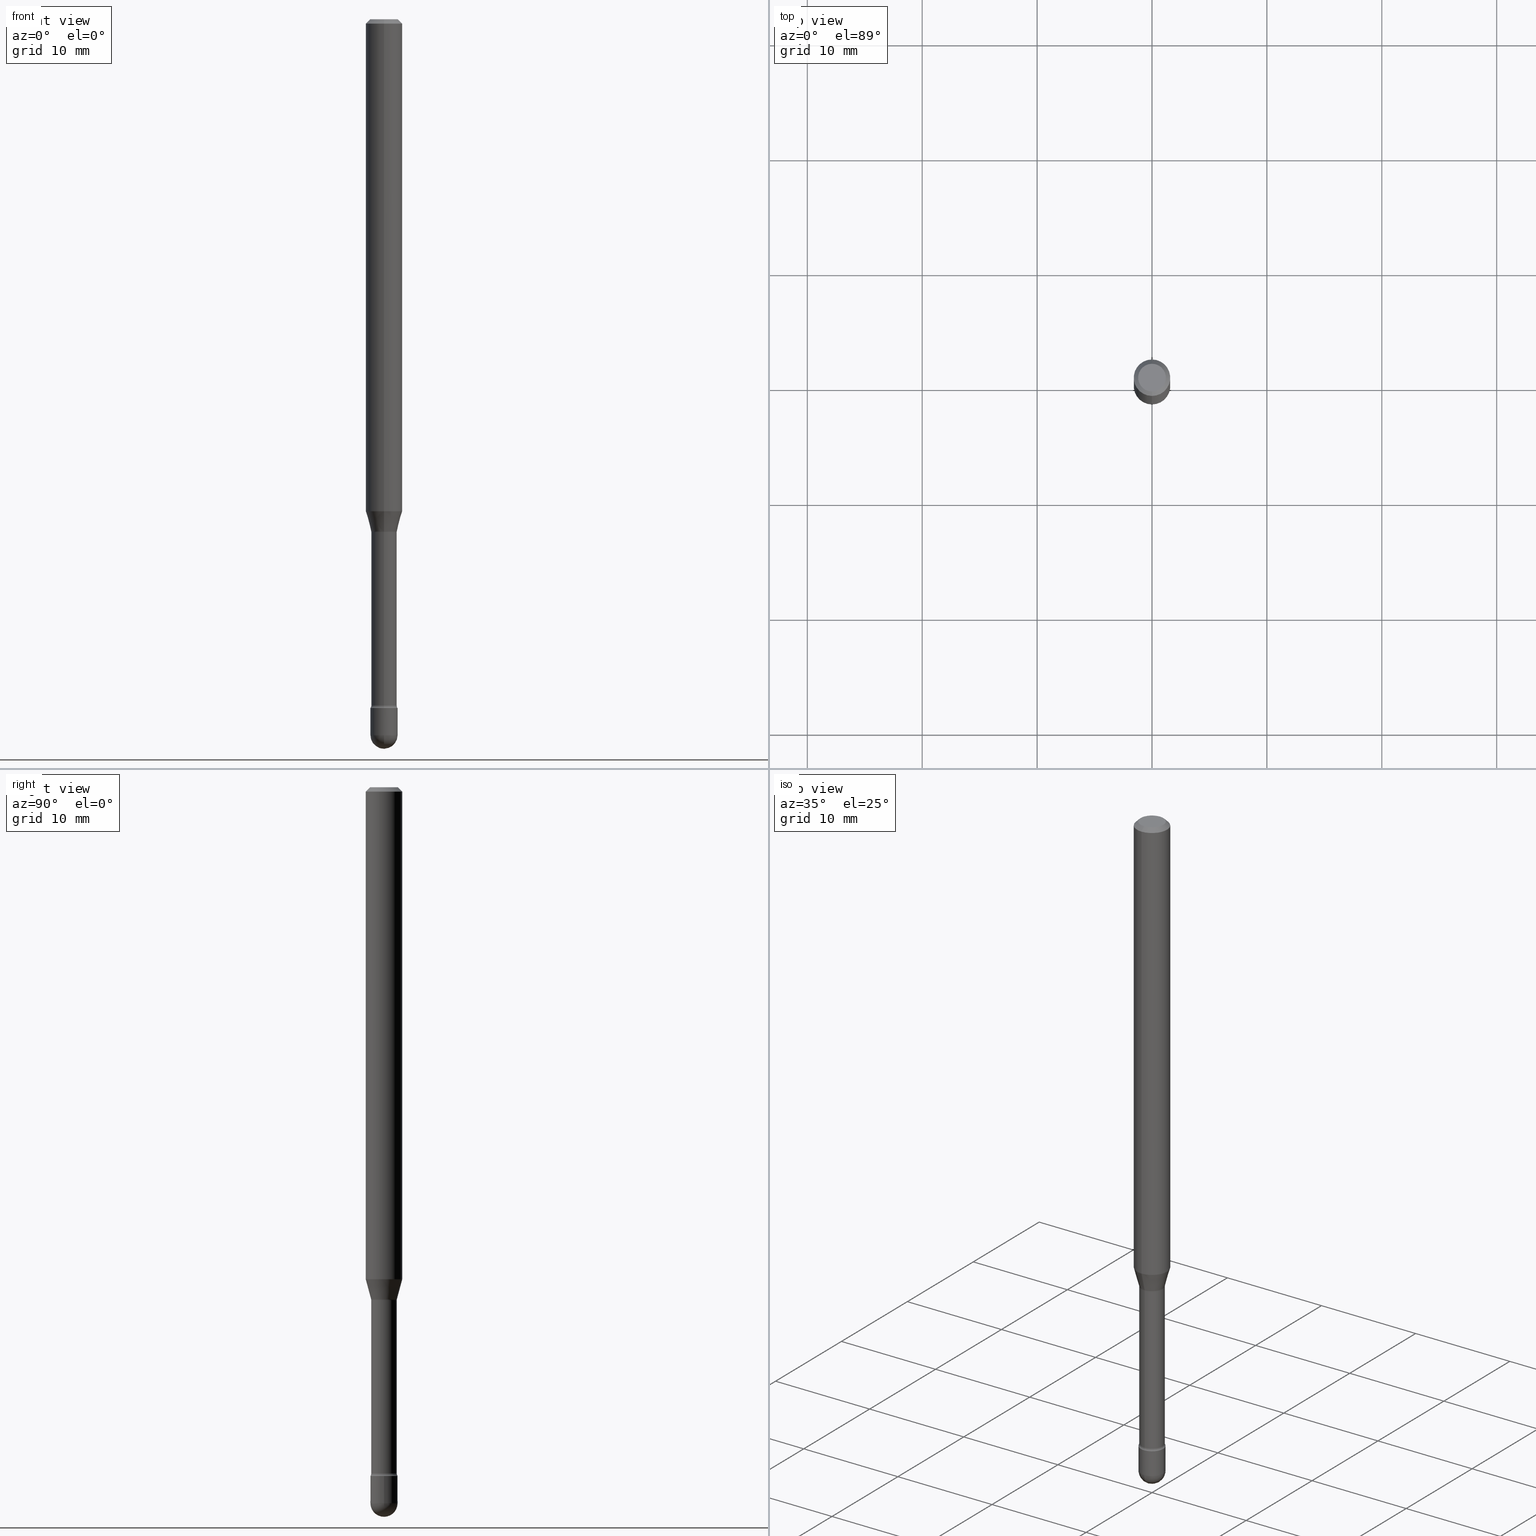
[diagram: canonical four-view strip — front | top / right | iso, engineering-drawing reading convention]
A machine part, canonical four-view strip (front | top / right | iso — engineering-drawing reading convention). The complete STEP part file that produces these views, byte-faithful:
ISO-10303-21;
HEADER;
FILE_DESCRIPTION (( 'STEP AP203' ),
    '1' );
FILE_NAME ('03880.STEP',
    '2024-04-09T20:55:21',
    ( '' ),
    ( '' ),
    'SwSTEP 2.0',
    'SolidWorks 2023',
    '' );
FILE_SCHEMA (( 'CONFIG_CONTROL_DESIGN' ));
ENDSEC;

DATA;
#1 = CIRCLE ( 'NONE', #383, 0.04649999999999999967 ) ;
#2 = VERTEX_POINT ( 'NONE', #502 ) ;
#3 = APPROVAL_PERSON_ORGANIZATION ( #469, #499, #238 ) ;
#4 = DIRECTION ( 'NONE',  ( -2.445468806185136597E-29, 3.491481338843145583E-15, 1.000000000000000000 ) ) ;
#5 = CARTESIAN_POINT ( 'NONE',  ( 4.364351673553919652E-16, 0.06249999999999995143, -0.01500000000000030129 ) ) ;
#6 = FACE_OUTER_BOUND ( 'NONE', #190, .T. ) ;
#7 = ORIENTED_EDGE ( 'NONE', *, *, #188, .T. ) ;
#8 = EDGE_CURVE ( 'NONE', #44, #538, #1, .T. ) ;
#9 = ORIENTED_EDGE ( 'NONE', *, *, #541, .F. ) ;
#10 = CC_DESIGN_PERSON_AND_ORGANIZATION_ASSIGNMENT ( #404, #39, ( #260 ) ) ;
#11 = EDGE_LOOP ( 'NONE', ( #277, #53, #56, #204 ) ) ;
#12 = AXIS2_PLACEMENT_3D ( 'NONE', #553, #512, #367 ) ;
#13 = DIRECTION ( 'NONE',  ( -2.445464837296052418E-29, 3.491487022518209281E-15, 1.000000000000000000 ) ) ;
#14 = AXIS2_PLACEMENT_3D ( 'NONE', #19, #92, #392 ) ;
#15 = VERTEX_POINT ( 'NONE', #286 ) ;
#16 = ORIENTED_EDGE ( 'NONE', *, *, #267, .T. ) ;
#17 = FACE_OUTER_BOUND ( 'NONE', #62, .T. ) ;
#18 = FACE_OUTER_BOUND ( 'NONE', #350, .T. ) ;
#19 = CARTESIAN_POINT ( 'NONE',  ( 0.000000000000000000, 0.000000000000000000, 0.000000000000000000 ) ) ;
#20 = EDGE_CURVE ( 'NONE', #314, #462, #394, .T. ) ;
#21 = DIRECTION ( 'NONE',  ( -6.982962677686265133E-15, -1.000000000000000000, 3.491487022518207704E-15 ) ) ;
#22 = ORIENTED_EDGE ( 'NONE', *, *, #262, .T. ) ;
#23 = DIRECTION ( 'NONE',  ( 6.982962677686265922E-15, 1.000000000000000000, -3.483106191921935554E-15 ) ) ;
#24 = AXIS2_PLACEMENT_3D ( 'NONE', #97, #131, #140 ) ;
#25 = DIRECTION ( 'NONE',  ( 1.000000000000000000, -6.982962677686280121E-15, 0.000000000000000000 ) ) ;
#26 = COORDINATED_UNIVERSAL_TIME_OFFSET ( 5, 0, .BEHIND. ) ;
#27 = DIRECTION ( 'NONE',  ( -2.445464837296052418E-29, 3.491487022518209281E-15, 1.000000000000000000 ) ) ;
#28 = CARTESIAN_POINT ( 'NONE',  ( 3.304023721285043681E-16, 0.04649999999999177014, -2.360000000000000320 ) ) ;
#29 = DIRECTION ( 'NONE',  ( -6.982962677686265922E-15, -1.000000000000000000, 3.491487022518209281E-15 ) ) ;
#30 = CARTESIAN_POINT ( 'NONE',  ( 5.999957715975233376E-29, -8.566349464851658011E-15, -2.453500000000000014 ) ) ;
#31 = PERSON_AND_ORGANIZATION_ROLE ( 'classification_officer' ) ;
#32 = AXIS2_PLACEMENT_3D ( 'NONE', #427, #386, #73 ) ;
#33 = AXIS2_PLACEMENT_3D ( 'NONE', #480, #124, #214 ) ;
#34 = MANIFOLD_SOLID_BREP ( 'Body-Move/Copy2[1]', #64 ) ;
#35 = DIRECTION ( 'NONE',  ( -2.445464837296052418E-29, 3.491487022518209281E-15, 1.000000000000000000 ) ) ;
#36 = DIRECTION ( 'NONE',  ( -2.445464837296052418E-29, 3.491487022518209281E-15, 1.000000000000000000 ) ) ;
#37 = ADVANCED_FACE ( 'NONE', ( #106 ), #444, .T. ) ;
#38 = DIRECTION ( 'NONE',  ( -2.445464837296052418E-29, 3.491487022518209281E-15, 1.000000000000000000 ) ) ;
#39 = PERSON_AND_ORGANIZATION_ROLE ( 'creator' ) ;
#40 = DIRECTION ( 'NONE',  ( -2.445464837296052418E-29, 3.491487022518209281E-15, 1.000000000000000000 ) ) ;
#41 = DIRECTION ( 'NONE',  ( -6.982962677686265922E-15, -1.000000000000000000, 3.491487022518209281E-15 ) ) ;
#42 = AXIS2_PLACEMENT_3D ( 'NONE', #146, #149, #23 ) ;
#43 = CIRCLE ( 'NONE', #12, 0.04649999999999999967 ) ;
#44 = VERTEX_POINT ( 'NONE', #233 ) ;
#45 = AXIS2_PLACEMENT_3D ( 'NONE', #240, #235, #552 ) ;
#46 = DIRECTION ( 'NONE',  ( 1.000000000000000000, -7.105427357601001070E-15, 4.926315578147027083E-29 ) ) ;
#47 = CONICAL_SURFACE ( 'NONE', #42, 0.06250000000000000000, 0.7853981633974483900 ) ;
#48 = EDGE_LOOP ( 'NONE', ( #436, #527, #306, #91 ) ) ;
#49 = CC_DESIGN_APPROVAL ( #355, ( #72 ) ) ;
#50 = EDGE_CURVE ( 'NONE', #44, #348, #406, .T. ) ;
#51 = ORIENTED_EDGE ( 'NONE', *, *, #71, .F. ) ;
#52 = DIRECTION ( 'NONE',  ( -6.982962677686267499E-15, -1.000000000000000000, 0.000000000000000000 ) ) ;
#53 = ORIENTED_EDGE ( 'NONE', *, *, #493, .F. ) ;
#54 = COORDINATED_UNIVERSAL_TIME_OFFSET ( 5, 0, .BEHIND. ) ;
#55 = FACE_OUTER_BOUND ( 'NONE', #531, .T. ) ;
#56 = ORIENTED_EDGE ( 'NONE', *, *, #113, .T. ) ;
#57 = CIRCLE ( 'NONE', #495, 0.04649999999999999967 ) ;
#58 = APPLICATION_PROTOCOL_DEFINITION ( 'international standard', 'config_control_design', 1994, #535 ) ;
#59 = AXIS2_PLACEMENT_3D ( 'NONE', #274, #153, #543 ) ;
#60 = APPLICATION_PROTOCOL_DEFINITION ( 'international standard', 'config_control_design', 1994, #271 ) ;
#61 = EDGE_CURVE ( 'NONE', #123, #325, #368, .T. ) ;
#62 = EDGE_LOOP ( 'NONE', ( #202, #151, #208, #468 ) ) ;
#63 = VERTEX_POINT ( 'NONE', #463 ) ;
#64 = CLOSED_SHELL ( 'NONE', ( #387, #372, #532, #317, #519 ) ) ;
#65 = CIRCLE ( 'NONE', #59, 0.06250000000000000000 ) ;
#66 = EDGE_CURVE ( 'NONE', #345, #263, #504, .T. ) ;
#67 = FACE_OUTER_BOUND ( 'NONE', #382, .T. ) ;
#68 = CALENDAR_DATE ( 2024, 9, 4 ) ;
#69 = EDGE_CURVE ( 'NONE', #314, #442, #166, .T. ) ;
#70 = CARTESIAN_POINT ( 'NONE',  ( 4.440892098501039328E-16, 0.06249999999999414357, -1.685837444817705588 ) ) ;
#71 = EDGE_CURVE ( 'NONE', #432, #538, #215, .T. ) ;
#72 = SECURITY_CLASSIFICATION ( '', '', #546 ) ;
#73 = DIRECTION ( 'NONE',  ( -6.982962677686266711E-15, -1.000000000000000000, 5.874941921858630857E-15 ) ) ;
#74 = DATE_AND_TIME ( #290, #464 ) ;
#75 = CARTESIAN_POINT ( 'NONE',  ( -4.364351673553916201E-16, -0.06250000000000000000, 6.962913377986341187E-16 ) ) ;
#76 = CYLINDRICAL_SURFACE ( 'NONE', #402, 0.04370000000000001661 ) ;
#77 = COORDINATED_UNIVERSAL_TIME_OFFSET ( 5, 0, .BEHIND. ) ;
#78 = DIRECTION ( 'NONE',  ( -6.982962677686265922E-15, -1.000000000000000000, 6.251368406554371473E-15 ) ) ;
#79 = VECTOR ( 'NONE', #239, 39.37007874015748143 ) ;
#80 = TOROIDAL_SURFACE ( 'NONE', #312, 0.05870000000000000218, 0.01500000000000003240 ) ;
#81 = CARTESIAN_POINT ( 'NONE',  ( 4.170885858912367565E-16, 0.05869999999999185591, -2.351273030308291823 ) ) ;
#82 = DIRECTION ( 'NONE',  ( -6.982962677686267499E-15, -1.000000000000000000, 0.000000000000000000 ) ) ;
#83 = CARTESIAN_POINT ( 'NONE',  ( 0.000000000000000000, 0.000000000000000000, 0.000000000000000000 ) ) ;
#84 = VERTEX_POINT ( 'NONE', #447 ) ;
#85 = ORIENTED_EDGE ( 'NONE', *, *, #250, .T. ) ;
#86 = CARTESIAN_POINT ( 'NONE',  ( -1.169113584055446105E-44, 1.669184350826100908E-30, 4.780733988912460139E-16 ) ) ;
#87 = EDGE_CURVE ( 'NONE', #393, #63, #534, .T. ) ;
#88 = ORIENTED_EDGE ( 'NONE', *, *, #443, .T. ) ;
#89 = LINE ( 'NONE', #446, #295 ) ;
#90 = ADVANCED_FACE ( 'NONE', ( #55 ), #199, .T. ) ;
#91 = ORIENTED_EDGE ( 'NONE', *, *, #129, .F. ) ;
#92 = DIRECTION ( 'NONE',  ( -2.445468806185136597E-29, 3.491481338843145583E-15, 1.000000000000000000 ) ) ;
#93 = CARTESIAN_POINT ( 'NONE',  ( 4.440892098501040314E-16, 0.06249999999999993755, -0.01500000000000030129 ) ) ;
#94 = ORIENTED_EDGE ( 'NONE', *, *, #541, .T. ) ;
#95 = EDGE_LOOP ( 'NONE', ( #178, #510, #331, #117 ) ) ;
#96 = ADVANCED_FACE ( 'NONE', ( #397 ), #182, .F. ) ;
#97 = CARTESIAN_POINT ( 'NONE',  ( 3.247077645124690836E-16, 0.04649999999999176320, -2.360000000000000320 ) ) ;
#98 = ORIENTED_EDGE ( 'NONE', *, *, #122, .F. ) ;
#99 = CIRCLE ( 'NONE', #119, 0.04649999999999999967 ) ;
#100 = CIRCLE ( 'NONE', #431, 0.04649999999999995109 ) ;
#101 = ORIENTED_EDGE ( 'NONE', *, *, #379, .T. ) ;
#102 = CARTESIAN_POINT ( 'NONE',  ( 2.023523996879717886E-45, -2.889119632308628528E-31, -8.274676209697990451E-17 ) ) ;
#103 = VERTEX_POINT ( 'NONE', #93 ) ;
#104 = CARTESIAN_POINT ( 'NONE',  ( 5.999957715975233376E-29, -8.566349464851658011E-15, -2.453500000000000014 ) ) ;
#105 = CC_DESIGN_DATE_AND_TIME_ASSIGNMENT ( #288, #507, ( #275 ) ) ;
#106 = FACE_OUTER_BOUND ( 'NONE', #425, .T. ) ;
#107 = CLOSED_SHELL ( 'NONE', ( #349, #174, #403, #183, #419, #90, #475, #37, #227, #307, #96, #297, #253, #219 ) ) ;
#108 = CARTESIAN_POINT ( 'NONE',  ( 4.170885858912217682E-16, 0.05869999999999386819, -1.757974787463811417 ) ) ;
#109 = VECTOR ( 'NONE', #561, 39.37007874015748143 ) ;
#110 = AXIS2_PLACEMENT_3D ( 'NONE', #155, #35, #115 ) ;
#111 = PERSON_AND_ORGANIZATION_ROLE ( 'creator' ) ;
#112 = DIRECTION ( 'NONE',  ( -2.445464837296052418E-29, 3.491487022518209281E-15, 1.000000000000000000 ) ) ;
#113 = EDGE_CURVE ( 'NONE', #462, #225, #420, .T. ) ;
#114 = APPROVAL_DATE_TIME ( #327, #499 ) ;
#115 = DIRECTION ( 'NONE',  ( -6.982962677686265922E-15, -1.000000000000000000, 3.483106191921935554E-15 ) ) ;
#116 = ORIENTED_EDGE ( 'NONE', *, *, #448, .T. ) ;
#117 = ORIENTED_EDGE ( 'NONE', *, *, #226, .F. ) ;
#118 = CARTESIAN_POINT ( 'NONE',  ( -4.364351673553502049E-16, -0.06250000000000584255, -1.685837444817705144 ) ) ;
#119 = AXIS2_PLACEMENT_3D ( 'NONE', #287, #248, #417 ) ;
#120 = DIRECTION ( 'NONE',  ( -2.445464837296052418E-29, 3.491487022518209281E-15, 1.000000000000000000 ) ) ;
#121 = DIRECTION ( 'NONE',  ( -6.982962677686265133E-15, -1.000000000000000000, 3.491487022518207704E-15 ) ) ;
#122 = EDGE_CURVE ( 'NONE', #348, #84, #57, .T. ) ;
#123 = VERTEX_POINT ( 'NONE', #347 ) ;
#124 = DIRECTION ( 'NONE',  ( -1.000000000000000000, 6.982962677686265922E-15, -4.883557194083111780E-29 ) ) ;
#125 = DIRECTION ( 'NONE',  ( -2.445464837296052418E-29, 3.491487022518209281E-15, 1.000000000000000000 ) ) ;
#126 = TOROIDAL_SURFACE ( 'NONE', #524, 0.05870000000000000218, 0.01500000000000003240 ) ;
#127 = LOCAL_TIME ( 16, 55, 21.00000000000000000, #26 ) ;
#128 = DIRECTION ( 'NONE',  ( -6.982962677686265922E-15, -1.000000000000000000, 4.370956789862821150E-15 ) ) ;
#129 = EDGE_CURVE ( 'NONE', #2, #103, #222, .T. ) ;
#130 = FACE_OUTER_BOUND ( 'NONE', #221, .T. ) ;
#131 = DIRECTION ( 'NONE',  ( -2.445464837296052138E-29, 3.491487022518209281E-15, 1.000000000000000000 ) ) ;
#132 = ORIENTED_EDGE ( 'NONE', *, *, #8, .T. ) ;
#133 = EDGE_CURVE ( 'NONE', #462, #123, #179, .T. ) ;
#134 = DIRECTION ( 'NONE',  ( 1.839019923739600315E-15, 0.2588190451025249583, 0.9659258262890670910 ) ) ;
#135 = ORIENTED_EDGE ( 'NONE', *, *, #50, .F. ) ;
#136 = CIRCLE ( 'NONE', #429, 0.04749999999999999362 ) ;
#137 = ORIENTED_EDGE ( 'NONE', *, *, #157, .T. ) ;
#138 = LINE ( 'NONE', #308, #542 ) ;
#139 = EDGE_LOOP ( 'NONE', ( #486, #169, #316, #185 ) ) ;
#140 = DIRECTION ( 'NONE',  ( -6.982962677686265922E-15, -1.000000000000000000, 3.491487022518209281E-15 ) ) ;
#141 = ORIENTED_EDGE ( 'NONE', *, *, #157, .F. ) ;
#142 = AXIS2_PLACEMENT_3D ( 'NONE', #412, #558, #335 ) ;
#143 = VECTOR ( 'NONE', #483, 39.37007874015748143 ) ;
#144 = PLANE ( 'NONE',  #167 ) ;
#145 = VERTEX_POINT ( 'NONE', #170 ) ;
#146 = CARTESIAN_POINT ( 'NONE',  ( 3.668197255944098613E-31, -5.237230533777343209E-17, -0.01500000000000008271 ) ) ;
#147 = DIRECTION ( 'NONE',  ( 1.000000000000000000, -6.982962677686265922E-15, 4.876176775795935793E-29 ) ) ;
#148 = EDGE_CURVE ( 'NONE', #63, #263, #269, .T. ) ;
#149 = DIRECTION ( 'NONE',  ( 2.445464837296052418E-29, -3.491487022518209281E-15, -1.000000000000000000 ) ) ;
#150 = CARTESIAN_POINT ( 'NONE',  ( 5.771306382596922099E-29, -8.239895959669823433E-15, -2.359999999999999876 ) ) ;
#151 = ORIENTED_EDGE ( 'NONE', *, *, #87, .F. ) ;
#152 = AXIS2_PLACEMENT_3D ( 'NONE', #441, #433, #52 ) ;
#153 = DIRECTION ( 'NONE',  ( -2.445464837296052418E-29, 3.491487022518209281E-15, 1.000000000000000000 ) ) ;
#154 = CARTESIAN_POINT ( 'NONE',  ( 3.105071755272214368E-16, 0.04369999999999385487, -1.757974787463811417 ) ) ;
#155 = CARTESIAN_POINT ( 'NONE',  ( 3.668197255944098613E-31, -5.237230533777343209E-17, -0.01500000000000008271 ) ) ;
#156 = DIRECTION ( 'NONE',  ( -2.445464837296052418E-29, 3.491487022518209281E-15, 1.000000000000000000 ) ) ;
#157 = EDGE_CURVE ( 'NONE', #314, #325, #138, .T. ) ;
#158 = DIRECTION ( 'NONE',  ( -2.445464837296052418E-29, 3.491487022518209281E-15, 1.000000000000000000 ) ) ;
#159 = EDGE_LOOP ( 'NONE', ( #390, #85, #396, #246, #313 ) ) ;
#160 = FACE_OUTER_BOUND ( 'NONE', #95, .T. ) ;
#161 = APPROVAL_DATE_TIME ( #74, #355 ) ;
#162 = CIRCLE ( 'NONE', #451, 0.04649999999999999967 ) ;
#163 = CARTESIAN_POINT ( 'NONE',  ( 4.289571534485439399E-29, -6.124391206286762977E-15, -1.754092501787273273 ) ) ;
#164 = PRODUCT_RELATED_PRODUCT_CATEGORY ( 'detail', '', ( #545 ) ) ;
#165 = EDGE_CURVE ( 'NONE', #256, #15, #89, .T. ) ;
#166 = CIRCLE ( 'NONE', #411, 0.01500000000000002720 ) ;
#167 = AXIS2_PLACEMENT_3D ( 'NONE', #321, #229, #147 ) ;
#168 = CC_DESIGN_DATE_AND_TIME_ASSIGNMENT ( #560, #409, ( #72 ) ) ;
#169 = ORIENTED_EDGE ( 'NONE', *, *, #212, .F. ) ;
#170 = CARTESIAN_POINT ( 'NONE',  ( -0.04649999999999999967, -8.072720340132295025E-15, -2.453500000000000014 ) ) ;
#171 = ORIENTED_EDGE ( 'NONE', *, *, #466, .F. ) ;
#172 = ORIENTED_EDGE ( 'NONE', *, *, #113, .F. ) ;
#173 = CARTESIAN_POINT ( 'NONE',  ( -4.098999091801407869E-16, -0.05870000000000614310, -1.757974787463810751 ) ) ;
#174 = ADVANCED_FACE ( 'NONE', ( #196 ), #289, .T. ) ;
#175 = DIRECTION ( 'NONE',  ( 4.937700262164548042E-15, 0.7071067811865451302, -0.7071067811865499042 ) ) ;
#176 = CONICAL_SURFACE ( 'NONE', #526, 0.04421111260566396722, 0.2617993877991502960 ) ;
#177 = ORIENTED_EDGE ( 'NONE', *, *, #493, .T. ) ;
#178 = ORIENTED_EDGE ( 'NONE', *, *, #364, .F. ) ;
#179 = LINE ( 'NONE', #536, #241 ) ;
#180 = ORIENTED_EDGE ( 'NONE', *, *, #422, .T. ) ;
#181 = CARTESIAN_POINT ( 'NONE',  ( 0.000000000000000000, 0.000000000000000000, 0.000000000000000000 ) ) ;
#182 = PLANE ( 'NONE',  #24 ) ;
#183 = ADVANCED_FACE ( 'NONE', ( #358 ), #47, .T. ) ;
#184 = CARTESIAN_POINT ( 'NONE',  ( -3.247077645123537619E-16, -0.04650000000000825695, -2.359999999999999876 ) ) ;
#185 = ORIENTED_EDGE ( 'NONE', *, *, #525, .T. ) ;
#186 = CARTESIAN_POINT ( 'NONE',  ( 4.289571534485439399E-29, -6.124391206286762977E-15, -1.754092501787273273 ) ) ;
#187 = AXIS2_PLACEMENT_3D ( 'NONE', #318, #278, #449 ) ;
#188 = EDGE_CURVE ( 'NONE', #63, #325, #377, .T. ) ;
#189 = ORGANIZATION ( 'UNSPECIFIED', 'UNSPECIFIED', '' ) ;
#190 = EDGE_LOOP ( 'NONE', ( #141, #354, #557, #252 ) ) ;
#191 = ORIENTED_EDGE ( 'NONE', *, *, #250, .F. ) ;
#192 = DIRECTION ( 'NONE',  ( 6.982962677686265922E-15, 1.000000000000000000, -5.874941921858636379E-15 ) ) ;
#193 = CARTESIAN_POINT ( 'NONE',  ( 0.04649999999999999967, -3.247077645124114474E-16, 2.267422200745110326E-30 ) ) ;
#194 = APPROVAL_STATUS ( 'not_yet_approved' ) ;
#195 = CARTESIAN_POINT ( 'NONE',  ( 3.316907271900976096E-16, 0.04749999999999999362, 3.181768482751820333E-17 ) ) ;
#196 = FACE_OUTER_BOUND ( 'NONE', #479, .T. ) ;
#197 = EDGE_LOOP ( 'NONE', ( #51, #230, #191, #258 ) ) ;
#198 = DIRECTION ( 'NONE',  ( -2.445468806185136877E-29, 3.491481338843145188E-15, 1.000000000000000000 ) ) ;
#199 = CONICAL_SURFACE ( 'NONE', #473, 0.04421111260566396722, 0.2617993877991502960 ) ;
#200 = CIRCLE ( 'NONE', #505, 0.04370000000000004436 ) ;
#201 = SHAPE_DEFINITION_REPRESENTATION ( #380, #366 ) ;
#202 = ORIENTED_EDGE ( 'NONE', *, *, #188, .F. ) ;
#203 = CARTESIAN_POINT ( 'NONE',  ( 5.749955518501461403E-29, -8.209439271718462949E-15, -2.351273030308291379 ) ) ;
#204 = ORIENTED_EDGE ( 'NONE', *, *, #245, .T. ) ;
#205 = APPROVAL ( #467, 'UNSPECIFIED' ) ;
#206 = DIRECTION ( 'NONE',  ( -6.982962677686265922E-15, -1.000000000000000000, 3.491487022518209281E-15 ) ) ;
#207 = AXIS2_PLACEMENT_3D ( 'NONE', #195, #244, #465 ) ;
#208 = ORIENTED_EDGE ( 'NONE', *, *, #559, .T. ) ;
#209 = PERSON_AND_ORGANIZATION ( #373, #189 ) ;
#210 = ORIENTED_EDGE ( 'NONE', *, *, #399, .T. ) ;
#211 = ORIENTED_EDGE ( 'NONE', *, *, #311, .T. ) ;
#212 = EDGE_CURVE ( 'NONE', #2, #256, #136, .T. ) ;
#213 = ORIENTED_EDGE ( 'NONE', *, *, #122, .T. ) ;
#214 = DIRECTION ( 'NONE',  ( 6.982962677686265922E-15, 1.000000000000000000, -5.874941921858636379E-15 ) ) ;
#215 = CIRCLE ( 'NONE', #142, 0.04649999999999995109 ) ;
#216 = CIRCLE ( 'NONE', #283, 0.04749999999999999362 ) ;
#217 = ORIENTED_EDGE ( 'NONE', *, *, #212, .T. ) ;
#218 = ORIENTED_EDGE ( 'NONE', *, *, #422, .F. ) ;
#219 = ADVANCED_FACE ( 'NONE', ( #17 ), #126, .F. ) ;
#220 =( LENGTH_UNIT ( ) NAMED_UNIT ( * ) SI_UNIT ( $, .METRE. ) );
#221 = EDGE_LOOP ( 'NONE', ( #491, #116, #171, #521 ) ) ;
#222 = LINE ( 'NONE', #5, #342 ) ;
#223 = CIRCLE ( 'NONE', #187, 0.04649999999999999967 ) ;
#224 = AXIS2_PLACEMENT_3D ( 'NONE', #181, #492, #357 ) ;
#225 = VERTEX_POINT ( 'NONE', #184 ) ;
#226 = EDGE_CURVE ( 'NONE', #264, #44, #223, .T. ) ;
#227 = ADVANCED_FACE ( 'NONE', ( #323 ), #336, .T. ) ;
#228 = DIRECTION ( 'NONE',  ( -6.982962677686265922E-15, -1.000000000000000000, 3.491487022518209281E-15 ) ) ;
#229 = DIRECTION ( 'NONE',  ( -2.438088387897960049E-29, 3.491481338843145188E-15, 1.000000000000000000 ) ) ;
#230 = ORIENTED_EDGE ( 'NONE', *, *, #364, .T. ) ;
#231 = AXIS2_PLACEMENT_3D ( 'NONE', #150, #503, #460 ) ;
#232 = CARTESIAN_POINT ( 'NONE',  ( 3.204547738278629271E-16, 0.04369999999999182871, -2.351273030308291823 ) ) ;
#233 = CARTESIAN_POINT ( 'NONE',  ( 0.04649999999999999967, -8.727830476773153796E-15, -2.453500000000000014 ) ) ;
#234 = APPROVAL_DATE_TIME ( #490, #205 ) ;
#235 = DIRECTION ( 'NONE',  ( -2.445464837296052418E-29, 3.491487022518209281E-15, 1.000000000000000000 ) ) ;
#236 = CARTESIAN_POINT ( 'NONE',  ( -1.169113584055446105E-44, 1.669184350826100908E-30, 4.780733988912460139E-16 ) ) ;
#237 = CARTESIAN_POINT ( 'NONE',  ( -3.773273898774340269E-16, -0.04749999999999999362, 8.309887147263503932E-17 ) ) ;
#238 = APPROVAL_ROLE ( '' ) ;
#239 = DIRECTION ( 'NONE',  ( -2.445464837296052418E-29, 3.491487022518209281E-15, 1.000000000000000000 ) ) ;
#240 = CARTESIAN_POINT ( 'NONE',  ( 4.289571534485439399E-29, -6.124391206286762977E-15, -1.754092501787273273 ) ) ;
#241 = VECTOR ( 'NONE', #315, 39.37007874015748143 ) ;
#242 = VECTOR ( 'NONE', #158, 39.37007874015748143 ) ;
#243 = PERSON_AND_ORGANIZATION ( #373, #189 ) ;
#244 = DIRECTION ( 'NONE',  ( 2.445464837296052138E-29, -3.491487022518209281E-15, -1.000000000000000000 ) ) ;
#245 = EDGE_CURVE ( 'NONE', #225, #442, #270, .T. ) ;
#246 = ORIENTED_EDGE ( 'NONE', *, *, #50, .T. ) ;
#247 = UNCERTAINTY_MEASURE_WITH_UNIT (LENGTH_MEASURE( 1.000000000000000082E-05 ), #528, 'distance_accuracy_value', 'NONE');
#248 = DIRECTION ( 'NONE',  ( -2.445468806185136597E-29, 3.491481338843145583E-15, 1.000000000000000000 ) ) ;
#249 = CARTESIAN_POINT ( 'NONE',  ( 0.04649999999999999967, -8.564603724182234141E-15, -2.359999999999999876 ) ) ;
#250 = EDGE_CURVE ( 'NONE', #145, #264, #99, .T. ) ;
#251 = APPROVAL_ROLE ( '' ) ;
#252 = ORIENTED_EDGE ( 'NONE', *, *, #322, .F. ) ;
#253 = ADVANCED_FACE ( 'NONE', ( #6 ), #76, .T. ) ;
#254 = CARTESIAN_POINT ( 'NONE',  ( -3.087245492642934148E-16, -0.04421111260567009427, -1.754092501787272829 ) ) ;
#255 = FACE_OUTER_BOUND ( 'NONE', #159, .T. ) ;
#256 = VERTEX_POINT ( 'NONE', #237 ) ;
#257 = CARTESIAN_POINT ( 'NONE',  ( 5.749964850443325781E-29, -8.209425907846573526E-15, -2.351273030308291379 ) ) ;
#258 = ORIENTED_EDGE ( 'NONE', *, *, #267, .F. ) ;
#259 = VECTOR ( 'NONE', #198, 39.37007874015748143 ) ;
#260 = PRODUCT_DEFINITION_FORMATION_WITH_SPECIFIED_SOURCE ( 'ANY', '', #545, .NOT_KNOWN. ) ;
#261 = ORIENTED_EDGE ( 'NONE', *, *, #66, .F. ) ;
#262 = EDGE_CURVE ( 'NONE', #442, #225, #43, .T. ) ;
#263 = VERTEX_POINT ( 'NONE', #70 ) ;
#264 = VERTEX_POINT ( 'NONE', #501 ) ;
#265 = DIRECTION ( 'NONE',  ( -2.445464837296052418E-29, 3.491487022518209281E-15, 1.000000000000000000 ) ) ;
#266 = ORIENTED_EDGE ( 'NONE', *, *, #448, .F. ) ;
#267 = EDGE_CURVE ( 'NONE', #538, #145, #162, .T. ) ;
#268 = DIMENSIONAL_EXPONENTS ( 1.000000000000000000, 0.000000000000000000, 0.000000000000000000, 0.000000000000000000, 0.000000000000000000, 0.000000000000000000, 0.000000000000000000 ) ;
#269 = LINE ( 'NONE', #529, #461 ) ;
#270 = CIRCLE ( 'NONE', #32, 0.04649999999999999967 ) ;
#271 = APPLICATION_CONTEXT ( 'configuration controlled 3d designs of mechanical parts and assemblies' ) ;
#272 = ORIENTED_EDGE ( 'NONE', *, *, #61, .F. ) ;
#273 = CARTESIAN_POINT ( 'NONE',  ( 3.668197255944098613E-31, -5.237230533777343209E-17, -0.01500000000000008271 ) ) ;
#274 = CARTESIAN_POINT ( 'NONE',  ( 3.668197255944098613E-31, -5.237230533777343209E-17, -0.01500000000000008271 ) ) ;
#275 = PRODUCT_DEFINITION ( 'UNKNOWN', '', #260, #298 ) ;
#276 = DIRECTION ( 'NONE',  ( -6.982962677686265922E-15, -1.000000000000000000, 6.251368406554371473E-15 ) ) ;
#277 = ORIENTED_EDGE ( 'NONE', *, *, #69, .F. ) ;
#278 = DIRECTION ( 'NONE',  ( -2.445468806185136597E-29, 3.491481338843145583E-15, 1.000000000000000000 ) ) ;
#279 = CARTESIAN_POINT ( 'NONE',  ( 3.247077645124712036E-16, 0.04649999999999141626, -2.453500000000000458 ) ) ;
#280 = DIRECTION ( 'NONE',  ( -2.445464837296052418E-29, 3.491487022518209281E-15, 1.000000000000000000 ) ) ;
#281 = EDGE_CURVE ( 'NONE', #84, #348, #484, .T. ) ;
#282 = AXIS2_PLACEMENT_3D ( 'NONE', #236, #280, #228 ) ;
#283 = AXIS2_PLACEMENT_3D ( 'NONE', #430, #518, #381 ) ;
#284 = DIRECTION ( 'NONE',  ( -2.445464837296052418E-29, 3.491487022518209281E-15, 1.000000000000000000 ) ) ;
#285 = DIRECTION ( 'NONE',  ( -1.000000000000000000, 7.105427357601001070E-15, -4.926315508542082329E-29 ) ) ;
#286 = CARTESIAN_POINT ( 'NONE',  ( -4.364351673553912750E-16, -0.06250000000000005551, -0.01499999999999986587 ) ) ;
#287 = CARTESIAN_POINT ( 'NONE',  ( 5.999957715975233376E-29, -8.566349464851658011E-15, -2.453500000000000014 ) ) ;
#288 = DATE_AND_TIME ( #338, #127 ) ;
#289 = CYLINDRICAL_SURFACE ( 'NONE', #359, 0.04370000000000001661 ) ;
#290 = CALENDAR_DATE ( 2024, 9, 4 ) ;
#291 = SPHERICAL_SURFACE ( 'NONE', #344, 0.04649999999999995109 ) ;
#292 = DIRECTION ( 'NONE',  ( -6.982962677686266711E-15, -1.000000000000000000, 6.179098042681425901E-15 ) ) ;
#293 = ORIENTED_EDGE ( 'NONE', *, *, #379, .F. ) ;
#294 = ORIENTED_EDGE ( 'NONE', *, *, #87, .T. ) ;
#295 = VECTOR ( 'NONE', #401, 39.37007874015748143 ) ;
#296 = APPROVAL_PERSON_ORGANIZATION ( #565, #205, #251 ) ;
#297 = ADVANCED_FACE ( 'NONE', ( #329 ), #324, .F. ) ;
#298 = DESIGN_CONTEXT ( 'detailed design', #271, 'design' ) ;
#299 = COORDINATED_UNIVERSAL_TIME_OFFSET ( 5, 0, .BEHIND. ) ;
#300 = DIRECTION ( 'NONE',  ( -6.982962677686265922E-15, -1.000000000000000000, 4.370956789862821150E-15 ) ) ;
#301 = AXIS2_PLACEMENT_3D ( 'NONE', #455, #398, #276 ) ;
#302 = DIRECTION ( 'NONE',  ( 1.000000000000000000, -6.982962677686267499E-15, 4.876176775795936353E-29 ) ) ;
#303 = CIRCLE ( 'NONE', #496, 0.01500000000000002720 ) ;
#304 = DIRECTION ( 'NONE',  ( -2.445464837296052418E-29, 3.491487022518209281E-15, 1.000000000000000000 ) ) ;
#305 = CARTESIAN_POINT ( 'NONE',  ( 5.771306382596922099E-29, -8.239895959669823433E-15, -2.359999999999999876 ) ) ;
#306 = ORIENTED_EDGE ( 'NONE', *, *, #466, .T. ) ;
#307 = ADVANCED_FACE ( 'NONE', ( #67 ), #375, .F. ) ;
#308 = CARTESIAN_POINT ( 'NONE',  ( 3.105071755271638499E-16, 0.04370000000000001661, 3.254954160072002498E-16 ) ) ;
#309 = EDGE_LOOP ( 'NONE', ( #16, #88, #98, #135, #132 ) ) ;
#310 = CARTESIAN_POINT ( 'NONE',  ( -3.087245492642934148E-16, -0.04421111260567009427, -1.754092501787272829 ) ) ;
#311 = EDGE_CURVE ( 'NONE', #345, #15, #415, .T. ) ;
#312 = AXIS2_PLACEMENT_3D ( 'NONE', #405, #27, #547 ) ;
#313 = ORIENTED_EDGE ( 'NONE', *, *, #281, .F. ) ;
#314 = VERTEX_POINT ( 'NONE', #232 ) ;
#315 = DIRECTION ( 'NONE',  ( -2.445464837296052418E-29, 3.491487022518209281E-15, 1.000000000000000000 ) ) ;
#316 = ORIENTED_EDGE ( 'NONE', *, *, #129, .T. ) ;
#317 = ADVANCED_FACE ( 'NONE', ( #160 ), #291, .T. ) ;
#318 = CARTESIAN_POINT ( 'NONE',  ( 5.999957715975233376E-29, -8.566349464851658011E-15, -2.453500000000000014 ) ) ;
#319 = AXIS2_PLACEMENT_3D ( 'NONE', #566, #36, #128 ) ;
#320 = LOCAL_TIME ( 16, 55, 21.00000000000000000, #77 ) ;
#321 = CARTESIAN_POINT ( 'NONE',  ( 5.771306382596922099E-29, -8.239895959669823433E-15, -2.359999999999999876 ) ) ;
#322 = EDGE_CURVE ( 'NONE', #325, #123, #440, .T. ) ;
#323 = FACE_OUTER_BOUND ( 'NONE', #139, .T. ) ;
#324 = TOROIDAL_SURFACE ( 'NONE', #562, 0.05870000000000007156, 0.01500000000000002720 ) ;
#325 = VERTEX_POINT ( 'NONE', #154 ) ;
#326 = AXIS2_PLACEMENT_3D ( 'NONE', #86, #470, #41 ) ;
#327 = DATE_AND_TIME ( #68, #320 ) ;
#328 = FACE_OUTER_BOUND ( 'NONE', #356, .T. ) ;
#329 = FACE_OUTER_BOUND ( 'NONE', #11, .T. ) ;
#330 = EDGE_LOOP ( 'NONE', ( #500, #476, #22, #172 ) ) ;
#331 = ORIENTED_EDGE ( 'NONE', *, *, #8, .F. ) ;
#332 = CC_DESIGN_PERSON_AND_ORGANIZATION_ASSIGNMENT ( #549, #371, ( #260 ) ) ;
#333 = CARTESIAN_POINT ( 'NONE',  ( 4.299065527595750921E-29, -6.137946156344103196E-15, -1.757974787463811195 ) ) ;
#334 = CARTESIAN_POINT ( 'NONE',  ( 4.440892098500625669E-16, 0.06250000000000000000, 2.598554599838579585E-16 ) ) ;
#335 = DIRECTION ( 'NONE',  ( 6.982962677686265133E-15, 1.000000000000000000, 0.000000000000000000 ) ) ;
#336 = CONICAL_SURFACE ( 'NONE', #551, 0.06250000000000000000, 0.7853981633974483900 ) ;
#337 = CC_DESIGN_APPROVAL ( #499, ( #260 ) ) ;
#338 = CALENDAR_DATE ( 2024, 9, 4 ) ;
#339 = ORIENTED_EDGE ( 'NONE', *, *, #133, .F. ) ;
#340 = CARTESIAN_POINT ( 'NONE',  ( 4.122656192698722490E-29, -5.886079560656275937E-15, -1.685837444817705366 ) ) ;
#341 = DIRECTION ( 'NONE',  ( 7.105427357601001859E-15, 1.000000000000000000, 0.000000000000000000 ) ) ;
#342 = VECTOR ( 'NONE', #175, 39.37007874015748143 ) ;
#343 = FACE_OUTER_BOUND ( 'NONE', #330, .T. ) ;
#344 = AXIS2_PLACEMENT_3D ( 'NONE', #556, #508, #192 ) ;
#345 = VERTEX_POINT ( 'NONE', #118 ) ;
#346 = LENGTH_MEASURE_WITH_UNIT ( LENGTH_MEASURE( 0.02539999999999999897 ), #220 );
#347 = CARTESIAN_POINT ( 'NONE',  ( -3.051554690148468256E-16, -0.04370000000000613671, -1.757974787463810751 ) ) ;
#348 = VERTEX_POINT ( 'NONE', #249 ) ;
#349 = ADVANCED_FACE ( 'NONE', ( #450 ), #80, .F. ) ;
#350 = EDGE_LOOP ( 'NONE', ( #213, #434 ) ) ;
#351 = AXIS2_PLACEMENT_3D ( 'NONE', #163, #13, #537 ) ;
#352 = DIRECTION ( 'NONE',  ( -6.982962677686266711E-15, -1.000000000000000000, 6.179098042681425901E-15 ) ) ;
#353 = AXIS2_PLACEMENT_3D ( 'NONE', #83, #4, #302 ) ;
#354 = ORIENTED_EDGE ( 'NONE', *, *, #20, .T. ) ;
#355 = APPROVAL ( #414, 'UNSPECIFIED' ) ;
#356 = EDGE_LOOP ( 'NONE', ( #488, #180, #94, #293 ) ) ;
#357 = DIRECTION ( 'NONE',  ( 1.000000000000000000, 0.000000000000000000, 0.000000000000000000 ) ) ;
#358 = FACE_OUTER_BOUND ( 'NONE', #48, .T. ) ;
#359 = AXIS2_PLACEMENT_3D ( 'NONE', #459, #548, #21 ) ;
#360 = AXIS2_PLACEMENT_3D ( 'NONE', #333, #40, #515 ) ;
#361 = DIRECTION ( 'NONE',  ( -6.982962677686265922E-15, -1.000000000000000000, 3.491487022518209281E-15 ) ) ;
#362 = CYLINDRICAL_SURFACE ( 'NONE', #14, 0.04649999999999999967 ) ;
#363 = LINE ( 'NONE', #310, #143 ) ;
#364 = EDGE_CURVE ( 'NONE', #432, #264, #100, .T. ) ;
#365 = DIRECTION ( 'NONE',  ( -2.445464837296052418E-29, 3.491487022518209281E-15, 1.000000000000000000 ) ) ;
#366 = ADVANCED_BREP_SHAPE_REPRESENTATION ( '03880', ( #34, #389, #224 ), #563 ) ;
#367 = DIRECTION ( 'NONE',  ( -6.982962677686266711E-15, -1.000000000000000000, 5.874941921858630857E-15 ) ) ;
#368 = CIRCLE ( 'NONE', #438, 0.04370000000000000273 ) ;
#369 = CARTESIAN_POINT ( 'NONE',  ( 4.299065527595750921E-29, -6.137946156344103196E-15, -1.757974787463811195 ) ) ;
#370 = LOCAL_TIME ( 16, 55, 21.00000000000000000, #54 ) ;
#371 = PERSON_AND_ORGANIZATION_ROLE ( 'design_supplier' ) ;
#372 = ADVANCED_FACE ( 'NONE', ( #550 ), #564, .T. ) ;
#373 = PERSON ( 'UNSPECIFIED', 'UNSPECIFIED', 'UNSPECIFIED', ('UNSPECIFIED'), ('UNSPECIFIED'), ('UNSPECIFIED') ) ;
#374 = APPROVAL_ROLE ( '' ) ;
#375 = PLANE ( 'NONE',  #207 ) ;
#376 = COORDINATED_UNIVERSAL_TIME_OFFSET ( 5, 0, .BEHIND. ) ;
#377 = CIRCLE ( 'NONE', #516, 0.01500000000000002720 ) ;
#378 = CIRCLE ( 'NONE', #45, 0.04421111260566396722 ) ;
#379 = EDGE_CURVE ( 'NONE', #263, #345, #421, .T. ) ;
#380 = PRODUCT_DEFINITION_SHAPE ( 'NONE', 'NONE',  #275 ) ;
#381 = DIRECTION ( 'NONE',  ( -6.982962677686266711E-15, -1.000000000000000000, 3.491487022518209676E-15 ) ) ;
#382 = EDGE_LOOP ( 'NONE', ( #217, #210 ) ) ;
#383 = AXIS2_PLACEMENT_3D ( 'NONE', #30, #506, #25 ) ;
#384 = APPROVAL_PERSON_ORGANIZATION ( #407, #355, #374 ) ;
#385 = DIRECTION ( 'NONE',  ( -2.445468806185136597E-29, 3.491481338843145583E-15, 1.000000000000000000 ) ) ;
#386 = DIRECTION ( 'NONE',  ( -2.445464837296052418E-29, 3.491487022518209281E-15, 1.000000000000000000 ) ) ;
#387 = ADVANCED_FACE ( 'NONE', ( #424 ), #522, .T. ) ;
#388 = ORIENTED_EDGE ( 'NONE', *, *, #322, .T. ) ;
#389 = MANIFOLD_SOLID_BREP ( 'Body-Move/Copy2[2]', #107 ) ;
#390 = ORIENTED_EDGE ( 'NONE', *, *, #443, .F. ) ;
#391 =( NAMED_UNIT ( * ) PLANE_ANGLE_UNIT ( ) SI_UNIT ( $, .RADIAN. ) );
#392 = DIRECTION ( 'NONE',  ( 1.000000000000000000, -6.982962677686267499E-15, 4.876176775795936353E-29 ) ) ;
#393 = VERTEX_POINT ( 'NONE', #254 ) ;
#394 = CIRCLE ( 'NONE', #301, 0.04370000000000004436 ) ;
#395 = CALENDAR_DATE ( 2024, 9, 4 ) ;
#396 = ORIENTED_EDGE ( 'NONE', *, *, #226, .T. ) ;
#397 = FACE_OUTER_BOUND ( 'NONE', #523, .T. ) ;
#398 = DIRECTION ( 'NONE',  ( -2.445464837296052418E-29, 3.491487022518209281E-15, 1.000000000000000000 ) ) ;
#399 = EDGE_CURVE ( 'NONE', #256, #2, #216, .T. ) ;
#400 = DIRECTION ( 'NONE',  ( -6.982962677686266711E-15, -1.000000000000000000, 3.491487022518209676E-15 ) ) ;
#401 = DIRECTION ( 'NONE',  ( -4.851104656540964275E-15, -0.7071067811865500152, -0.7071067811865450192 ) ) ;
#402 = AXIS2_PLACEMENT_3D ( 'NONE', #456, #38, #121 ) ;
#403 = ADVANCED_FACE ( 'NONE', ( #343 ), #413, .F. ) ;
#404 = PERSON_AND_ORGANIZATION ( #373, #189 ) ;
#405 = CARTESIAN_POINT ( 'NONE',  ( 4.299072504802695232E-29, -6.137936164586641226E-15, -1.757974787463811195 ) ) ;
#406 = LINE ( 'NONE', #193, #259 ) ;
#407 = PERSON_AND_ORGANIZATION ( #373, #189 ) ;
#408 = CARTESIAN_POINT ( 'NONE',  ( -0.04649999999999999967, 3.304023721284465841E-16, -2.287304816968531530E-30 ) ) ;
#409 = DATE_TIME_ROLE ( 'classification_date' ) ;
#410 = DIRECTION ( 'NONE',  ( 1.000000000000000000, -6.982962677686280121E-15, 0.000000000000000000 ) ) ;
#411 = AXIS2_PLACEMENT_3D ( 'NONE', #81, #46, #341 ) ;
#412 = CARTESIAN_POINT ( 'NONE',  ( 5.999957715975233376E-29, -8.566349464851658011E-15, -2.453500000000000014 ) ) ;
#413 = TOROIDAL_SURFACE ( 'NONE', #423, 0.05870000000000007156, 0.01500000000000002720 ) ;
#414 = APPROVAL_STATUS ( 'not_yet_approved' ) ;
#415 = LINE ( 'NONE', #75, #79 ) ;
#416 = CARTESIAN_POINT ( 'NONE',  ( 6.115660277085183893E-29, -8.725856043299847054E-15, -2.500000000000000000 ) ) ;
#417 = DIRECTION ( 'NONE',  ( 1.000000000000000000, -6.982962677686280121E-15, 0.000000000000000000 ) ) ;
#418 = CARTESIAN_POINT ( 'NONE',  ( 5.999957715975233376E-29, -8.566349464851658011E-15, -2.453500000000000014 ) ) ;
#419 = ADVANCED_FACE ( 'NONE', ( #130 ), #478, .T. ) ;
#420 = CIRCLE ( 'NONE', #152, 0.01500000000000002720 ) ;
#421 = CIRCLE ( 'NONE', #474, 0.06250000000000000000 ) ;
#422 = EDGE_CURVE ( 'NONE', #63, #393, #378, .T. ) ;
#423 = AXIS2_PLACEMENT_3D ( 'NONE', #257, #304, #206 ) ;
#424 = FACE_OUTER_BOUND ( 'NONE', #309, .T. ) ;
#425 = EDGE_LOOP ( 'NONE', ( #266, #101, #211, #482 ) ) ;
#426 = DIRECTION ( 'NONE',  ( -1.000000000000000000, 6.982962677686265922E-15, -4.883557194083112340E-29 ) ) ;
#427 = CARTESIAN_POINT ( 'NONE',  ( 5.771297016018683774E-29, -8.239909373142973636E-15, -2.359999999999999876 ) ) ;
#428 = ORIENTED_EDGE ( 'NONE', *, *, #262, .F. ) ;
#429 = AXIS2_PLACEMENT_3D ( 'NONE', #102, #445, #400 ) ;
#430 = CARTESIAN_POINT ( 'NONE',  ( 2.023523996879717886E-45, -2.889119632308628528E-31, -8.274676209697990451E-17 ) ) ;
#431 = AXIS2_PLACEMENT_3D ( 'NONE', #418, #285, #453 ) ;
#432 = VERTEX_POINT ( 'NONE', #416 ) ;
#433 = DIRECTION ( 'NONE',  ( -1.000000000000000000, 6.982962677686265922E-15, -4.883557194083112340E-29 ) ) ;
#434 = ORIENTED_EDGE ( 'NONE', *, *, #281, .T. ) ;
#435 = DIRECTION ( 'NONE',  ( 1.000000000000000000, -6.982962677686260400E-15, 0.000000000000000000 ) ) ;
#436 = ORIENTED_EDGE ( 'NONE', *, *, #399, .F. ) ;
#437 = DIRECTION ( 'NONE',  ( 1.000000000000000000, -7.105427357601001070E-15, 4.926315578147027083E-29 ) ) ;
#438 = AXIS2_PLACEMENT_3D ( 'NONE', #369, #156, #511 ) ;
#439 = PERSON_AND_ORGANIZATION_ROLE ( 'design_owner' ) ;
#440 = CIRCLE ( 'NONE', #360, 0.04370000000000000273 ) ;
#441 = CARTESIAN_POINT ( 'NONE',  ( -4.098999091801267846E-16, -0.05870000000000828722, -2.351273030308290934 ) ) ;
#442 = VERTEX_POINT ( 'NONE', #28 ) ;
#443 = EDGE_CURVE ( 'NONE', #145, #84, #454, .T. ) ;
#444 = CYLINDRICAL_SURFACE ( 'NONE', #282, 0.06250000000000000000 ) ;
#445 = DIRECTION ( 'NONE',  ( -2.445464837296052418E-29, 3.491487022518209281E-15, 1.000000000000000000 ) ) ;
#446 = CARTESIAN_POINT ( 'NONE',  ( -4.287811248607203282E-16, -0.06250000000000005551, -0.01499999999999986587 ) ) ;
#447 = CARTESIAN_POINT ( 'NONE',  ( -0.04649999999999999967, -8.072720340132295025E-15, -2.359999999999999876 ) ) ;
#448 = EDGE_CURVE ( 'NONE', #263, #103, #555, .T. ) ;
#449 = DIRECTION ( 'NONE',  ( 1.000000000000000000, -6.982962677686280121E-15, 0.000000000000000000 ) ) ;
#450 = FACE_OUTER_BOUND ( 'NONE', #539, .T. ) ;
#451 = AXIS2_PLACEMENT_3D ( 'NONE', #104, #458, #410 ) ;
#452 = CC_DESIGN_SECURITY_CLASSIFICATION ( #72, ( #260 ) ) ;
#453 = DIRECTION ( 'NONE',  ( -7.105427357601001070E-15, -1.000000000000000000, 0.000000000000000000 ) ) ;
#454 = LINE ( 'NONE', #408, #109 ) ;
#455 = CARTESIAN_POINT ( 'NONE',  ( 5.749955518501461403E-29, -8.209439271718462949E-15, -2.351273030308291379 ) ) ;
#456 = CARTESIAN_POINT ( 'NONE',  ( -1.169113584055446105E-44, 1.669184350826100908E-30, 4.780733988912460139E-16 ) ) ;
#457 = CALENDAR_DATE ( 2024, 9, 4 ) ;
#458 = DIRECTION ( 'NONE',  ( -2.445468806185136597E-29, 3.491481338843145583E-15, 1.000000000000000000 ) ) ;
#459 = CARTESIAN_POINT ( 'NONE',  ( -1.169113584055446105E-44, 1.669184350826100908E-30, 4.780733988912460139E-16 ) ) ;
#460 = DIRECTION ( 'NONE',  ( 1.000000000000000000, -6.982962677686260400E-15, 0.000000000000000000 ) ) ;
#461 = VECTOR ( 'NONE', #134, 39.37007874015748143 ) ;
#462 = VERTEX_POINT ( 'NONE', #520 ) ;
#463 = CARTESIAN_POINT ( 'NONE',  ( 3.791140294342049729E-16, 0.04421111260565784712, -1.754092501787273495 ) ) ;
#464 = LOCAL_TIME ( 16, 55, 21.00000000000000000, #299 ) ;
#465 = DIRECTION ( 'NONE',  ( 6.982962677686265922E-15, 1.000000000000000000, -3.491487022518209281E-15 ) ) ;
#466 = EDGE_CURVE ( 'NONE', #15, #103, #544, .T. ) ;
#467 = APPROVAL_STATUS ( 'not_yet_approved' ) ;
#468 = ORIENTED_EDGE ( 'NONE', *, *, #61, .T. ) ;
#469 = PERSON_AND_ORGANIZATION ( #373, #189 ) ;
#470 = DIRECTION ( 'NONE',  ( -2.445464837296052418E-29, 3.491487022518209281E-15, 1.000000000000000000 ) ) ;
#471 = CC_DESIGN_PERSON_AND_ORGANIZATION_ASSIGNMENT ( #243, #31, ( #72 ) ) ;
#472 = DIRECTION ( 'NONE',  ( 2.445464837296052418E-29, -3.491487022518209281E-15, -1.000000000000000000 ) ) ;
#473 = AXIS2_PLACEMENT_3D ( 'NONE', #186, #265, #352 ) ;
#474 = AXIS2_PLACEMENT_3D ( 'NONE', #340, #125, #300 ) ;
#475 = ADVANCED_FACE ( 'NONE', ( #328 ), #176, .T. ) ;
#476 = ORIENTED_EDGE ( 'NONE', *, *, #69, .T. ) ;
#477 = CC_DESIGN_PERSON_AND_ORGANIZATION_ASSIGNMENT ( #209, #439, ( #545 ) ) ;
#478 = CYLINDRICAL_SURFACE ( 'NONE', #326, 0.06250000000000000000 ) ;
#479 = EDGE_LOOP ( 'NONE', ( #177, #137, #272, #339 ) ) ;
#480 = CARTESIAN_POINT ( 'NONE',  ( 5.999957715975233376E-29, -8.566349464851658011E-15, -2.453500000000000014 ) ) ;
#481 = DIRECTION ( 'NONE',  ( -2.445464837296052418E-29, 3.491487022518209281E-15, 1.000000000000000000 ) ) ;
#482 = ORIENTED_EDGE ( 'NONE', *, *, #525, .F. ) ;
#483 = DIRECTION ( 'NONE',  ( -1.807323732225330139E-15, -0.2588190451025181860, 0.9659258262890689783 ) ) ;
#484 = CIRCLE ( 'NONE', #231, 0.04649999999999999967 ) ;
#485 = CC_DESIGN_APPROVAL ( #205, ( #275 ) ) ;
#486 = ORIENTED_EDGE ( 'NONE', *, *, #165, .F. ) ;
#487 = CC_DESIGN_PERSON_AND_ORGANIZATION_ASSIGNMENT ( #513, #111, ( #275 ) ) ;
#488 = ORIENTED_EDGE ( 'NONE', *, *, #148, .F. ) ;
#489 =( NAMED_UNIT ( * ) SI_UNIT ( $, .STERADIAN. ) SOLID_ANGLE_UNIT ( ) );
#490 = DATE_AND_TIME ( #395, #370 ) ;
#491 = ORIENTED_EDGE ( 'NONE', *, *, #66, .T. ) ;
#492 = DIRECTION ( 'NONE',  ( 0.000000000000000000, 0.000000000000000000, 1.000000000000000000 ) ) ;
#493 = EDGE_CURVE ( 'NONE', #462, #314, #200, .T. ) ;
#494 = CARTESIAN_POINT ( 'NONE',  ( 4.299072504802695232E-29, -6.137936164586641226E-15, -1.757974787463811195 ) ) ;
#495 = AXIS2_PLACEMENT_3D ( 'NONE', #305, #385, #435 ) ;
#496 = AXIS2_PLACEMENT_3D ( 'NONE', #173, #426, #82 ) ;
#497 = ORIENTED_EDGE ( 'NONE', *, *, #245, .F. ) ;
#498 = DIRECTION ( 'NONE',  ( 7.105427357601001859E-15, 1.000000000000000000, 0.000000000000000000 ) ) ;
#499 = APPROVAL ( #194, 'UNSPECIFIED' ) ;
#500 = ORIENTED_EDGE ( 'NONE', *, *, #20, .F. ) ;
#501 = CARTESIAN_POINT ( 'NONE',  ( -3.304023721283863841E-16, -0.04650000000000854145, -2.453500000000000014 ) ) ;
#502 = CARTESIAN_POINT ( 'NONE',  ( 3.840629472727447874E-16, 0.04749999999999999362, -2.485923956665948360E-16 ) ) ;
#503 = DIRECTION ( 'NONE',  ( -2.445468806185136597E-29, 3.491481338843145583E-15, 1.000000000000000000 ) ) ;
#504 = CIRCLE ( 'NONE', #319, 0.06250000000000000000 ) ;
#505 = AXIS2_PLACEMENT_3D ( 'NONE', #203, #120, #78 ) ;
#506 = DIRECTION ( 'NONE',  ( -2.445468806185136597E-29, 3.491481338843145583E-15, 1.000000000000000000 ) ) ;
#507 = DATE_TIME_ROLE ( 'creation_date' ) ;
#508 = DIRECTION ( 'NONE',  ( -1.000000000000000000, 6.982962677686265922E-15, -4.883557194083111780E-29 ) ) ;
#509 = CARTESIAN_POINT ( 'NONE',  ( 4.289571534485439399E-29, -6.124391206286762977E-15, -1.754092501787273273 ) ) ;
#510 = ORIENTED_EDGE ( 'NONE', *, *, #71, .T. ) ;
#511 = DIRECTION ( 'NONE',  ( -6.982962677686266711E-15, -1.000000000000000000, 6.251368406554377784E-15 ) ) ;
#512 = DIRECTION ( 'NONE',  ( -2.445464837296052418E-29, 3.491487022518209281E-15, 1.000000000000000000 ) ) ;
#513 = PERSON_AND_ORGANIZATION ( #373, #189 ) ;
#514 = ORIENTED_EDGE ( 'NONE', *, *, #559, .F. ) ;
#515 = DIRECTION ( 'NONE',  ( -6.982962677686266711E-15, -1.000000000000000000, 6.251368406554377784E-15 ) ) ;
#516 = AXIS2_PLACEMENT_3D ( 'NONE', #108, #437, #498 ) ;
#517 = LOCAL_TIME ( 16, 55, 21.00000000000000000, #376 ) ;
#518 = DIRECTION ( 'NONE',  ( -2.445464837296052418E-29, 3.491487022518209281E-15, 1.000000000000000000 ) ) ;
#519 = ADVANCED_FACE ( 'NONE', ( #255 ), #362, .T. ) ;
#520 = CARTESIAN_POINT ( 'NONE',  ( -3.051554690148325768E-16, -0.04370000000000825308, -2.351273030308290934 ) ) ;
#521 = ORIENTED_EDGE ( 'NONE', *, *, #311, .F. ) ;
#522 = CYLINDRICAL_SURFACE ( 'NONE', #353, 0.04649999999999999967 ) ;
#523 = EDGE_LOOP ( 'NONE', ( #497, #428 ) ) ;
#524 = AXIS2_PLACEMENT_3D ( 'NONE', #494, #284, #361 ) ;
#525 = EDGE_CURVE ( 'NONE', #103, #15, #65, .T. ) ;
#526 = AXIS2_PLACEMENT_3D ( 'NONE', #509, #112, #292 ) ;
#527 = ORIENTED_EDGE ( 'NONE', *, *, #165, .T. ) ;
#528 =( CONVERSION_BASED_UNIT ( 'INCH', #346 ) LENGTH_UNIT ( ) NAMED_UNIT ( #268 ) );
#529 = CARTESIAN_POINT ( 'NONE',  ( 3.141388490183061117E-16, 0.04421111260565784712, -1.754092501787273495 ) ) ;
#530 = DIRECTION ( 'NONE',  ( 6.982962677686265922E-15, 1.000000000000000000, -3.483106191921935554E-15 ) ) ;
#531 = EDGE_LOOP ( 'NONE', ( #294, #533, #261, #9 ) ) ;
#532 = ADVANCED_FACE ( 'NONE', ( #18 ), #144, .T. ) ;
#533 = ORIENTED_EDGE ( 'NONE', *, *, #148, .T. ) ;
#534 = CIRCLE ( 'NONE', #351, 0.04421111260566396722 ) ;
#535 = APPLICATION_CONTEXT ( 'configuration controlled 3d designs of mechanical parts and assemblies' ) ;
#536 = CARTESIAN_POINT ( 'NONE',  ( -3.051554690148899172E-16, -0.04370000000000001661, 6.306513817752917780E-16 ) ) ;
#537 = DIRECTION ( 'NONE',  ( -6.982962677686266711E-15, -1.000000000000000000, 6.179098042681425901E-15 ) ) ;
#538 = VERTEX_POINT ( 'NONE', #279 ) ;
#539 = EDGE_LOOP ( 'NONE', ( #218, #7, #388, #514 ) ) ;
#540 = MECHANICAL_CONTEXT ( 'NONE', #535, 'mechanical' ) ;
#541 = EDGE_CURVE ( 'NONE', #393, #345, #363, .T. ) ;
#542 = VECTOR ( 'NONE', #481, 39.37007874015748143 ) ;
#543 = DIRECTION ( 'NONE',  ( -6.982962677686265922E-15, -1.000000000000000000, 3.483106191921935554E-15 ) ) ;
#544 = CIRCLE ( 'NONE', #110, 0.06250000000000000000 ) ;
#545 = PRODUCT ( '03880', '03880', '', ( #540 ) ) ;
#546 = SECURITY_CLASSIFICATION_LEVEL ( 'unclassified' ) ;
#547 = DIRECTION ( 'NONE',  ( -6.982962677686265922E-15, -1.000000000000000000, 3.491487022518209281E-15 ) ) ;
#548 = DIRECTION ( 'NONE',  ( -2.445464837296052418E-29, 3.491487022518209281E-15, 1.000000000000000000 ) ) ;
#549 = PERSON_AND_ORGANIZATION ( #373, #189 ) ;
#550 = FACE_OUTER_BOUND ( 'NONE', #197, .T. ) ;
#551 = AXIS2_PLACEMENT_3D ( 'NONE', #273, #472, #530 ) ;
#552 = DIRECTION ( 'NONE',  ( -6.982962677686266711E-15, -1.000000000000000000, 6.179098042681425901E-15 ) ) ;
#553 = CARTESIAN_POINT ( 'NONE',  ( 5.771297016018683774E-29, -8.239909373142973636E-15, -2.359999999999999876 ) ) ;
#554 = CARTESIAN_POINT ( 'NONE',  ( 5.749964850443325781E-29, -8.209425907846573526E-15, -2.351273030308291379 ) ) ;
#555 = LINE ( 'NONE', #334, #242 ) ;
#556 = CARTESIAN_POINT ( 'NONE',  ( 5.999957715975233376E-29, -8.566349464851658011E-15, -2.453500000000000014 ) ) ;
#557 = ORIENTED_EDGE ( 'NONE', *, *, #133, .T. ) ;
#558 = DIRECTION ( 'NONE',  ( 1.000000000000000000, -6.982962677686265922E-15, 4.883557194083112340E-29 ) ) ;
#559 = EDGE_CURVE ( 'NONE', #393, #123, #303, .T. ) ;
#560 = DATE_AND_TIME ( #457, #517 ) ;
#561 = DIRECTION ( 'NONE',  ( -2.445468806185136877E-29, 3.491481338843145188E-15, 1.000000000000000000 ) ) ;
#562 = AXIS2_PLACEMENT_3D ( 'NONE', #554, #365, #29 ) ;
#563 =( GEOMETRIC_REPRESENTATION_CONTEXT ( 3 ) GLOBAL_UNCERTAINTY_ASSIGNED_CONTEXT ( ( #247 ) ) GLOBAL_UNIT_ASSIGNED_CONTEXT ( ( #528, #391, #489 ) ) REPRESENTATION_CONTEXT ( 'NONE', 'WORKASPACE' ) );
#564 = SPHERICAL_SURFACE ( 'NONE', #33, 0.04649999999999995109 ) ;
#565 = PERSON_AND_ORGANIZATION ( #373, #189 ) ;
#566 = CARTESIAN_POINT ( 'NONE',  ( 4.122656192698722490E-29, -5.886079560656275937E-15, -1.685837444817705366 ) ) ;
ENDSEC;
END-ISO-10303-21;
